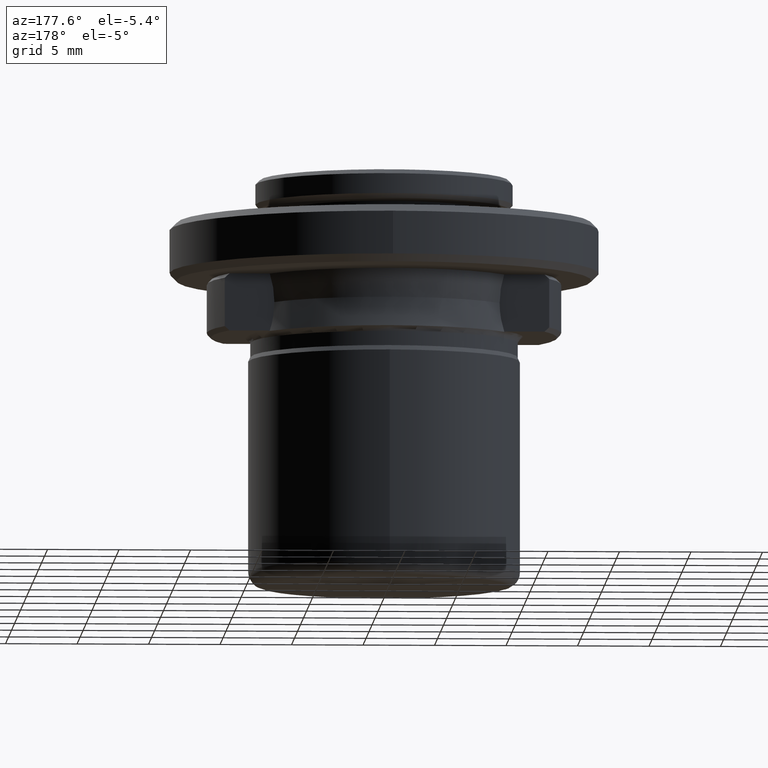
[diagram: clean part render]
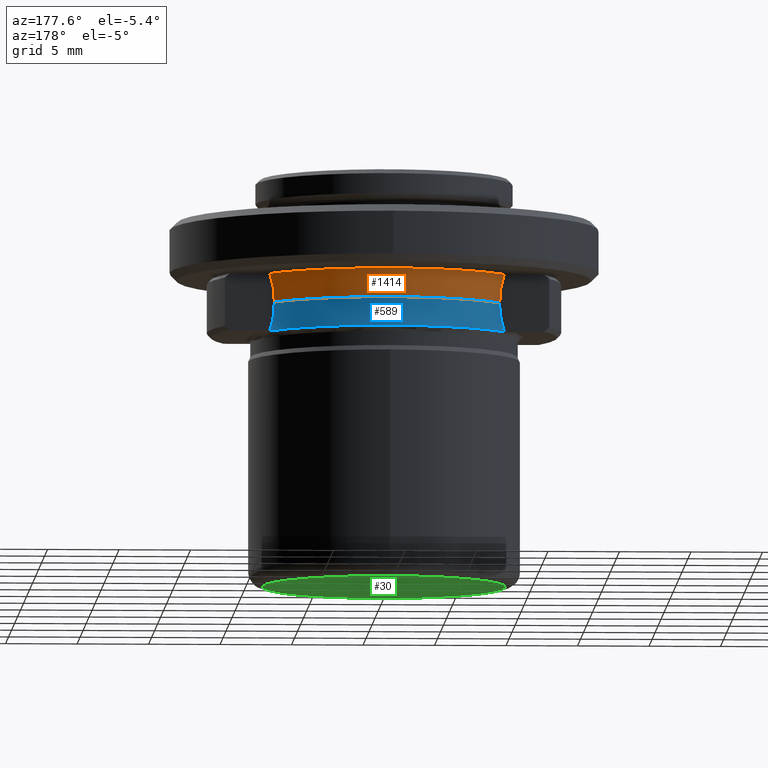
[diagram: same view with three faces highlighted in distinct colors, each labeled with its STEP entity id]
A machine part, auxiliary view with three faces highlighted in distinct colors.
Their STEP definitions:

[orange] entity #1414 — the highlighted face is a freeform B-spline surface patch.
#10 = CARTESIAN_POINT ( 'NONE',  ( 7.877112416672512800, 4.999999997048595500, 6.749999999319589600 ) ) ;
#32 = CARTESIAN_POINT ( 'NONE',  ( -7.987554438100409500, 5.000000000000000000, 8.103832765032985100 ) ) ;
#33 = CARTESIAN_POINT ( 'NONE',  ( -8.091804077999999100, 4.800549054000000200, 8.356088229000002700 ) ) ;
#68 = EDGE_CURVE ( 'NONE', #420, #1046, #1342, .T. ) ;
#171 = CARTESIAN_POINT ( 'NONE',  ( -7.877112416672511100, 4.999999997048597300, 6.749999999319589600 ) ) ;
#172 = CARTESIAN_POINT ( 'NONE',  ( 4.187432670999998900, 12.22200806699999900, 9.461645811000002100 ) ) ;
#177 = ORIENTED_EDGE ( 'NONE', *, *, #1528, .T. ) ;
#258 = CARTESIAN_POINT ( 'NONE',  ( -4.015183221453917800, 11.85561054469040200, 8.750000000000001800 ) ) ;
#307 = CARTESIAN_POINT ( 'NONE',  ( -3.987414726000000400, 11.63820860699999700, 6.001249375000002200 ) ) ;
#317 = CARTESIAN_POINT ( 'NONE',  ( -8.460519829000002500, 5.019293605000001400, 9.461645811000002100 ) ) ;
#325 = CARTESIAN_POINT ( 'NONE',  ( -7.877112416672511100, 4.999999997048597300, 6.749999999319589600 ) ) ;
#377 = EDGE_CURVE ( 'NONE', #1780, #420, #1736, .T. ) ;
#420 = VERTEX_POINT ( 'NONE', #325 ) ;
#448 = CARTESIAN_POINT ( 'NONE',  ( -8.196975812969103700, 5.000000000442648600, 8.750000000509832200 ) ) ;
#449 = CARTESIAN_POINT ( 'NONE',  ( 7.954581259999998500, 4.719140153000001400, 7.181098635999999800 ) ) ;
#452 = CARTESIAN_POINT ( 'NONE',  ( 7.877112415001549000, 5.000000000000003600, 7.429352586418210600 ) ) ;
#524 = EDGE_CURVE ( 'NONE', #1559, #1046, #535, .T. ) ;
#535 = B_SPLINE_CURVE_WITH_KNOTS ( 'NONE', 3,
 ( #1135, #593, #452, #1421 ),
 .UNSPECIFIED., .F., .F.,
 ( 4, 4 ),
 ( 2.261502033258373100E-013, 0.002031991267083054800 ),
 .UNSPECIFIED. ) ;
#593 = CARTESIAN_POINT ( 'NONE',  ( 7.987554438062074000, 5.000000000000002700, 8.103832764914706400 ) ) ;
#595 =( BOUNDED_SURFACE ( )  B_SPLINE_SURFACE ( 3, 3, ( 
 ( #724, #1142, #307, #1274 ),
 ( #449, #1420, #601, #1550 ),
 ( #748, #1685, #883, #33 ),
 ( #1019, #172, #1149, #317 ) ),
 .UNSPECIFIED., .F., .F., .F. ) 
 B_SPLINE_SURFACE_WITH_KNOTS ( ( 4, 4 ),
 ( 4, 4 ),
 ( 0.0000000000000000000, 1.000000000000000000 ),
 ( 0.0000000000000000000, 1.000000000000000000 ),
 .UNSPECIFIED. ) 
 GEOMETRIC_REPRESENTATION_ITEM ( )  RATIONAL_B_SPLINE_SURFACE ( (
 ( 1.000000000000000000, 0.6734850439786470600, 0.6734850439786470600, 1.000000000000000000),
 ( 0.9816814431953340100, 0.6611477699434310500, 0.6611477699434310500, 0.9816814431953340100),
 ( 0.9816814431953340100, 0.6611477699434310500, 0.6611477699434310500, 0.9816814431953340100),
 ( 1.000000000000000000, 0.6734850439786470600, 0.6734850439786470600, 1.000000000000000000) ) ) 
 REPRESENTATION_ITEM ( '' )  SURFACE ( )  );
#601 = CARTESIAN_POINT ( 'NONE',  ( -3.937024453000000300, 11.49113273000000000, 7.181098635999998900 ) ) ;
#697 = CARTESIAN_POINT ( 'NONE',  ( 8.196975814546172900, 5.000000003314001500, 8.750000000509832200 ) ) ;
#723 = CARTESIAN_POINT ( 'NONE',  ( -7.877112416672511100, 4.999999997048597300, 6.749999999319589600 ) ) ;
#724 = CARTESIAN_POINT ( 'NONE',  ( 8.056392546000001400, 4.779540785000001800, 6.001249375000001300 ) ) ;
#728 = ORIENTED_EDGE ( 'NONE', *, *, #377, .F. ) ;
#748 = CARTESIAN_POINT ( 'NONE',  ( 8.091804077999999100, 4.800549054000000200, 8.356088229000002700 ) ) ;
#862 = CARTESIAN_POINT ( 'NONE',  ( 3.802041327538610900, 11.41995861482380400, 6.749999999011321500 ) ) ;
#883 = CARTESIAN_POINT ( 'NONE',  ( -4.004941237999998900, 11.68936385900000000, 8.356088229000002700 ) ) ;
#943 = EDGE_LOOP ( 'NONE', ( #1479, #728, #177, #1377 ) ) ;
#970 = FACE_OUTER_BOUND ( 'NONE', #943, .T. ) ;
#972 = CARTESIAN_POINT ( 'NONE',  ( 8.196975814546172900, 5.000000003314001500, 8.750000000509832200 ) ) ;
#1017 = CARTESIAN_POINT ( 'NONE',  ( -7.877112415001547200, 5.000000000000000000, 7.429352586293858500 ) ) ;
#1019 = CARTESIAN_POINT ( 'NONE',  ( 8.460519829000002500, 5.019293605000001400, 9.461645811000002100 ) ) ;
#1046 = VERTEX_POINT ( 'NONE', #1673 ) ;
#1135 = CARTESIAN_POINT ( 'NONE',  ( 8.196975814546172900, 5.000000003314001500, 8.750000000509832200 ) ) ;
#1142 = CARTESIAN_POINT ( 'NONE',  ( 3.987414726000000400, 11.63820860699999700, 6.001249375000002200 ) ) ;
#1149 = CARTESIAN_POINT ( 'NONE',  ( -4.187432670999998900, 12.22200806699999900, 9.461645811000002100 ) ) ;
#1228 = CARTESIAN_POINT ( 'NONE',  ( -8.196975812969103700, 5.000000000442648600, 8.750000000509832200 ) ) ;
#1274 = CARTESIAN_POINT ( 'NONE',  ( -8.056392546000001400, 4.779540785000001800, 6.001249375000001300 ) ) ;
#1342 =( BOUNDED_CURVE ( )  B_SPLINE_CURVE ( 3, ( #723, #1523, #862, #10 ),
 .UNSPECIFIED., .F., .F. ) 
 B_SPLINE_CURVE_WITH_KNOTS ( ( 4, 4 ),
 ( 0.0000000000000000000, 1.000000000000000000 ),
 .UNSPECIFIED. ) 
 CURVE ( )  GEOMETRIC_REPRESENTATION_ITEM ( )  RATIONAL_B_SPLINE_CURVE ( ( 0.9738585525977352400, 0.6725504043378097700, 0.6725504043378099900, 0.9738585525977354600 ) ) 
 REPRESENTATION_ITEM ( '' )  );
#1377 = ORIENTED_EDGE ( 'NONE', *, *, #524, .T. ) ;
#1414 = ADVANCED_FACE ( 'NONE', ( #970 ), #595, .F. ) ;
#1420 = CARTESIAN_POINT ( 'NONE',  ( 3.937024453000000300, 11.49113273000000000, 7.181098635999998900 ) ) ;
#1421 = CARTESIAN_POINT ( 'NONE',  ( 7.877112416672512800, 4.999999997048595500, 6.749999999319589600 ) ) ;
#1429 = CARTESIAN_POINT ( 'NONE',  ( -8.196975812969103700, 5.000000000442648600, 8.750000000509832200 ) ) ;
#1479 = ORIENTED_EDGE ( 'NONE', *, *, #68, .F. ) ;
#1504 = CARTESIAN_POINT ( 'NONE',  ( 4.015183221453870700, 11.85561054469042100, 8.750000000000001800 ) ) ;
#1523 = CARTESIAN_POINT ( 'NONE',  ( -3.802041327538604200, 11.41995861482380700, 6.749999999011319800 ) ) ;
#1528 = EDGE_CURVE ( 'NONE', #1780, #1559, #1729, .T. ) ;
#1550 = CARTESIAN_POINT ( 'NONE',  ( -7.954581259999998500, 4.719140153000001400, 7.181098635999999800 ) ) ;
#1559 = VERTEX_POINT ( 'NONE', #972 ) ;
#1673 = CARTESIAN_POINT ( 'NONE',  ( 7.877112416672512800, 4.999999997048595500, 6.749999999319589600 ) ) ;
#1685 = CARTESIAN_POINT ( 'NONE',  ( 4.004941237999998900, 11.68936385900000000, 8.356088229000002700 ) ) ;
#1729 =( BOUNDED_CURVE ( )  B_SPLINE_CURVE ( 3, ( #1228, #258, #1504, #697 ),
 .UNSPECIFIED., .F., .F. ) 
 B_SPLINE_CURVE_WITH_KNOTS ( ( 4, 4 ),
 ( 0.0000000000000000000, 0.01955758531167859200 ),
 .UNSPECIFIED. ) 
 CURVE ( )  GEOMETRIC_REPRESENTATION_ITEM ( )  RATIONAL_B_SPLINE_CURVE ( ( 0.9839124906199209200, 0.6695507562702077700, 0.6695507562702069900, 0.9839124906199190300 ) ) 
 REPRESENTATION_ITEM ( '' )  );
#1736 = B_SPLINE_CURVE_WITH_KNOTS ( 'NONE', 3,
 ( #448, #32, #1017, #171 ),
 .UNSPECIFIED., .F., .F.,
 ( 4, 4 ),
 ( 5.980985295301940700E-013, 0.002031991267083052600 ),
 .UNSPECIFIED. ) ;
#1780 = VERTEX_POINT ( 'NONE', #1429 ) ;

[blue] entity #589 — the highlighted face is a freeform B-spline surface patch.
#1 = VERTEX_POINT ( 'NONE', #232 ) ;
#10 = CARTESIAN_POINT ( 'NONE',  ( 7.877112416672512800, 4.999999997048595500, 6.749999999319589600 ) ) ;
#53 = EDGE_CURVE ( 'NONE', #1046, #1162, #1289, .T. ) ;
#68 = EDGE_CURVE ( 'NONE', #420, #1046, #1342, .T. ) ;
#128 = CARTESIAN_POINT ( 'NONE',  ( -7.955968956000000400, 4.715005183999999800, 6.309778704000000200 ) ) ;
#134 = EDGE_CURVE ( 'NONE', #1162, #1, #217, .T. ) ;
#141 = CARTESIAN_POINT ( 'NONE',  ( 7.990553860150956900, 5.000000000000000000, 5.378188955162049600 ) ) ;
#217 = CIRCLE ( 'NONE', #665, 9.608762133607653400 ) ;
#232 = CARTESIAN_POINT ( 'NONE',  ( -8.205382973227298000, 5.000000000000000900, 4.724235039559845400 ) ) ;
#267 = CARTESIAN_POINT ( 'NONE',  ( 3.990071549000000100, 11.64093999100000000, 7.498750625000000400 ) ) ;
#321 = CARTESIAN_POINT ( 'NONE',  ( -7.877112416672511100, 4.999999997048597300, 6.749999999319589600 ) ) ;
#325 = CARTESIAN_POINT ( 'NONE',  ( -7.877112416672511100, 4.999999997048597300, 6.749999999319589600 ) ) ;
#406 = CARTESIAN_POINT ( 'NONE',  ( -4.194360708000000500, 12.23694881300000100, 4.013434577999999100 ) ) ;
#409 = CARTESIAN_POINT ( 'NONE',  ( -8.058595508000001600, 4.775825521999999900, 7.498750625000000400 ) ) ;
#420 = VERTEX_POINT ( 'NONE', #325 ) ;
#534 = ORIENTED_EDGE ( 'NONE', *, *, #68, .T. ) ;
#550 = CARTESIAN_POINT ( 'NONE',  ( 8.096106681000000200, 4.798056047999999400, 5.125992605999997000 ) ) ;
#589 = ADVANCED_FACE ( 'NONE', ( #1248 ), #1670, .F. ) ;
#619 = ORIENTED_EDGE ( 'NONE', *, *, #53, .T. ) ;
#626 = DIRECTION ( 'NONE',  ( 0.0000000000000000000, 9.026779162063304700E-017, 1.000000000000000000 ) ) ;
#665 = AXIS2_PLACEMENT_3D ( 'NONE', #1435, #626, #1573 ) ;
#699 = CARTESIAN_POINT ( 'NONE',  ( -4.008644545999999300, 11.69512627200000000, 5.125992605999998700 ) ) ;
#723 = CARTESIAN_POINT ( 'NONE',  ( -7.877112416672511100, 4.999999997048597300, 6.749999999319589600 ) ) ;
#842 = CARTESIAN_POINT ( 'NONE',  ( 7.955968956000000400, 4.715005183999999800, 6.309778704000000200 ) ) ;
#862 = CARTESIAN_POINT ( 'NONE',  ( 3.802041327538610900, 11.41995861482380400, 6.749999999011321500 ) ) ;
#887 = CARTESIAN_POINT ( 'NONE',  ( -8.205382973227298000, 5.000000000000000900, 4.724235039559845400 ) ) ;
#963 = CARTESIAN_POINT ( 'NONE',  ( 8.471190540000002000, 5.020344791000000300, 4.013434577999998300 ) ) ;
#969 = CARTESIAN_POINT ( 'NONE',  ( -3.939257820999999500, 11.49269213200000200, 6.309778704000000200 ) ) ;
#981 = CARTESIAN_POINT ( 'NONE',  ( 7.877112416672512800, 4.999999997048595500, 6.749999999319589600 ) ) ;
#1046 = VERTEX_POINT ( 'NONE', #1673 ) ;
#1087 = EDGE_LOOP ( 'NONE', ( #619, #1255, #1272, #534 ) ) ;
#1104 = CARTESIAN_POINT ( 'NONE',  ( 8.058595508000001600, 4.775825521999999900, 7.498750625000000400 ) ) ;
#1118 = CARTESIAN_POINT ( 'NONE',  ( 7.877112415290536500, 5.000000000000000000, 6.061559035861058900 ) ) ;
#1151 = CARTESIAN_POINT ( 'NONE',  ( -7.877112415290540100, 5.000000000000000000, 6.061556053650237500 ) ) ;
#1162 = VERTEX_POINT ( 'NONE', #1183 ) ;
#1183 = CARTESIAN_POINT ( 'NONE',  ( 8.205382974800770100, 5.000000000000000900, 4.724235040159770800 ) ) ;
#1230 = CARTESIAN_POINT ( 'NONE',  ( 4.194360708000000500, 12.23694881300000100, 4.013434577999999100 ) ) ;
#1234 = CARTESIAN_POINT ( 'NONE',  ( -3.990071549000000100, 11.64093999100000000, 7.498750625000000400 ) ) ;
#1248 = FACE_OUTER_BOUND ( 'NONE', #1087, .T. ) ;
#1250 = CARTESIAN_POINT ( 'NONE',  ( 8.205382974800770100, 5.000000000000000900, 4.724235040159770800 ) ) ;
#1255 = ORIENTED_EDGE ( 'NONE', *, *, #134, .T. ) ;
#1272 = ORIENTED_EDGE ( 'NONE', *, *, #1772, .T. ) ;
#1289 = B_SPLINE_CURVE_WITH_KNOTS ( 'NONE', 3,
 ( #981, #1118, #141, #1250 ),
 .UNSPECIFIED., .F., .F.,
 ( 4, 4 ),
 ( 8.673617379884035500E-019, 0.002058707678565891700 ),
 .UNSPECIFIED. ) ;
#1342 =( BOUNDED_CURVE ( )  B_SPLINE_CURVE ( 3, ( #723, #1523, #862, #10 ),
 .UNSPECIFIED., .F., .F. ) 
 B_SPLINE_CURVE_WITH_KNOTS ( ( 4, 4 ),
 ( 0.0000000000000000000, 1.000000000000000000 ),
 .UNSPECIFIED. ) 
 CURVE ( )  GEOMETRIC_REPRESENTATION_ITEM ( )  RATIONAL_B_SPLINE_CURVE ( ( 0.9738585525977352400, 0.6725504043378097700, 0.6725504043378099900, 0.9738585525977354600 ) ) 
 REPRESENTATION_ITEM ( '' )  );
#1373 = CARTESIAN_POINT ( 'NONE',  ( -8.471190540000002000, 5.020344791000000300, 4.013434577999998300 ) ) ;
#1416 = B_SPLINE_CURVE_WITH_KNOTS ( 'NONE', 3,
 ( #887, #1423, #1151, #321 ),
 .UNSPECIFIED., .F., .F.,
 ( 4, 4 ),
 ( 1.213076539937994500E-013, 0.002059031618340729500 ),
 .UNSPECIFIED. ) ;
#1423 = CARTESIAN_POINT ( 'NONE',  ( -7.990552239294795600, 4.999999999999997300, 5.378193889154550400 ) ) ;
#1435 = CARTESIAN_POINT ( 'NONE',  ( 0.0000000000000000000, 0.0000000000000000000, 4.724235039728594800 ) ) ;
#1506 = CARTESIAN_POINT ( 'NONE',  ( 4.008644545999999300, 11.69512627200000000, 5.125992605999998700 ) ) ;
#1523 = CARTESIAN_POINT ( 'NONE',  ( -3.802041327538604200, 11.41995861482380700, 6.749999999011319800 ) ) ;
#1573 = DIRECTION ( 'NONE',  ( 0.0000000000000000000, -1.000000000000000000, 9.026779161851814800E-017 ) ) ;
#1640 = CARTESIAN_POINT ( 'NONE',  ( -8.096106681000000200, 4.798056047999999400, 5.125992605999997000 ) ) ;
#1670 =( BOUNDED_SURFACE ( )  B_SPLINE_SURFACE ( 3, 3, ( 
 ( #963, #1230, #406, #1373 ),
 ( #550, #1506, #699, #1640 ),
 ( #842, #1781, #969, #128 ),
 ( #1104, #267, #1234, #409 ) ),
 .UNSPECIFIED., .F., .F., .F. ) 
 B_SPLINE_SURFACE_WITH_KNOTS ( ( 4, 4 ),
 ( 4, 4 ),
 ( 0.0000000000000000000, 1.000000000000000000 ),
 ( 0.0000000000000000000, 1.000000000000000000 ),
 .UNSPECIFIED. ) 
 GEOMETRIC_REPRESENTATION_ITEM ( )  RATIONAL_B_SPLINE_SURFACE ( (
 ( 1.000000000000000000, 0.6732206351089341500, 0.6732206351089341500, 1.000000000000000000),
 ( 0.9814036659297938900, 0.6607011992754922000, 0.6607011992754922000, 0.9814036659297938900),
 ( 0.9814036659297938900, 0.6607011992754922000, 0.6607011992754922000, 0.9814036659297938900),
 ( 1.000000000000000000, 0.6732206351089341500, 0.6732206351089341500, 1.000000000000000000) ) ) 
 REPRESENTATION_ITEM ( '' )  SURFACE ( )  );
#1673 = CARTESIAN_POINT ( 'NONE',  ( 7.877112416672512800, 4.999999997048595500, 6.749999999319589600 ) ) ;
#1772 = EDGE_CURVE ( 'NONE', #1, #420, #1416, .T. ) ;
#1781 = CARTESIAN_POINT ( 'NONE',  ( 3.939257820999999500, 11.49269213200000200, 6.309778704000000200 ) ) ;

[green] entity #30 — the highlighted planar face has unit normal (0, 0, 1).
#14 = EDGE_LOOP ( 'NONE', ( #202, #890 ) ) ;
#30 = ADVANCED_FACE ( 'NONE', ( #1011 ), #475, .F. ) ;
#73 = CARTESIAN_POINT ( 'NONE',  ( 8.500000000000000000, 2.364620801796248300E-016, -12.75000000000000200 ) ) ;
#202 = ORIENTED_EDGE ( 'NONE', *, *, #953, .T. ) ;
#256 = CARTESIAN_POINT ( 'NONE',  ( 0.0000000000000000000, 2.364620801796248300E-016, -12.75000000000000200 ) ) ;
#400 = DIRECTION ( 'NONE',  ( 1.000000000000000000, 0.0000000000000000000, 0.0000000000000000000 ) ) ;
#403 = CIRCLE ( 'NONE', #1402, 8.500000000000000000 ) ;
#473 = CIRCLE ( 'NONE', #1743, 8.500000000000000000 ) ;
#475 = PLANE ( 'NONE',  #1526 ) ;
#497 = VERTEX_POINT ( 'NONE', #585 ) ;
#585 = CARTESIAN_POINT ( 'NONE',  ( -8.500000000000000000, 1.338644199412242400E-015, -12.75000000000000200 ) ) ;
#628 = DIRECTION ( 'NONE',  ( 0.0000000000000000000, 0.0000000000000000000, 1.000000000000000000 ) ) ;
#640 = VERTEX_POINT ( 'NONE', #73 ) ;
#704 = DIRECTION ( 'NONE',  ( -0.0000000000000000000, -0.0000000000000000000, -1.000000000000000000 ) ) ;
#890 = ORIENTED_EDGE ( 'NONE', *, *, #1338, .T. ) ;
#953 = EDGE_CURVE ( 'NONE', #640, #497, #473, .T. ) ;
#1011 = FACE_OUTER_BOUND ( 'NONE', #14, .T. ) ;
#1223 = DIRECTION ( 'NONE',  ( -0.0000000000000000000, -0.0000000000000000000, -1.000000000000000000 ) ) ;
#1338 = EDGE_CURVE ( 'NONE', #497, #640, #403, .T. ) ;
#1402 = AXIS2_PLACEMENT_3D ( 'NONE', #1510, #704, #1642 ) ;
#1439 = CARTESIAN_POINT ( 'NONE',  ( -8.450200000000000600, -8.450200000000000600, -12.75000000000000200 ) ) ;
#1510 = CARTESIAN_POINT ( 'NONE',  ( 0.0000000000000000000, 2.364620801796248300E-016, -12.75000000000000200 ) ) ;
#1526 = AXIS2_PLACEMENT_3D ( 'NONE', #1439, #628, #1575 ) ;
#1575 = DIRECTION ( 'NONE',  ( 1.000000000000000000, 0.0000000000000000000, 0.0000000000000000000 ) ) ;
#1642 = DIRECTION ( 'NONE',  ( 1.000000000000000000, 0.0000000000000000000, 0.0000000000000000000 ) ) ;
#1743 = AXIS2_PLACEMENT_3D ( 'NONE', #256, #1223, #400 ) ;